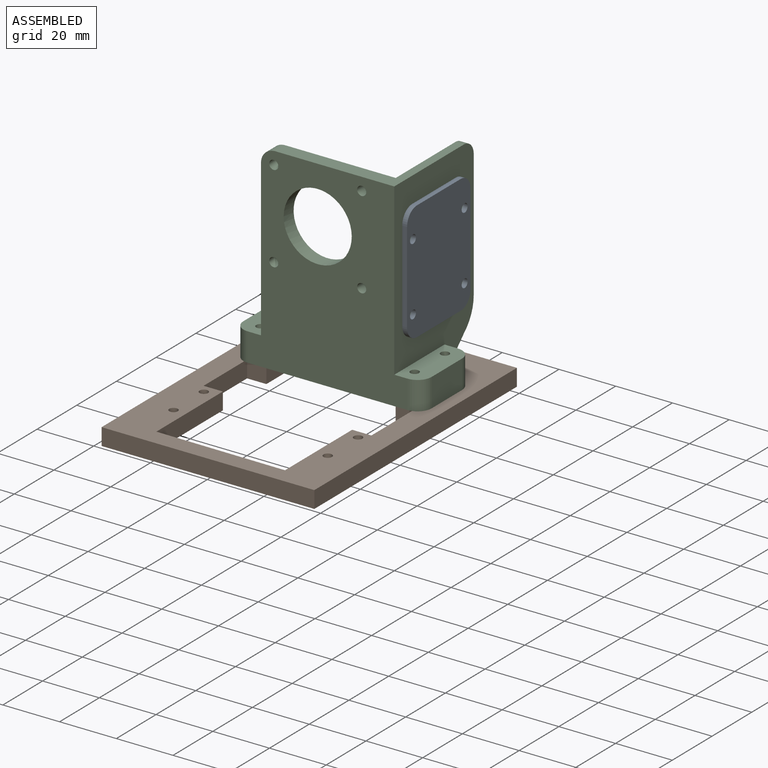
[diagram: assembled view]
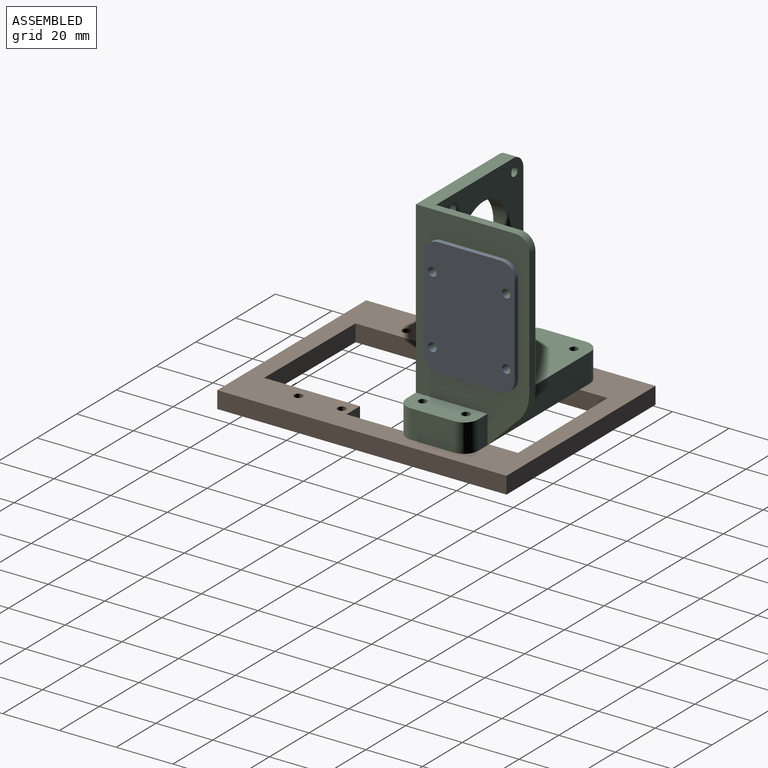
[diagram: assembled view, second angle]
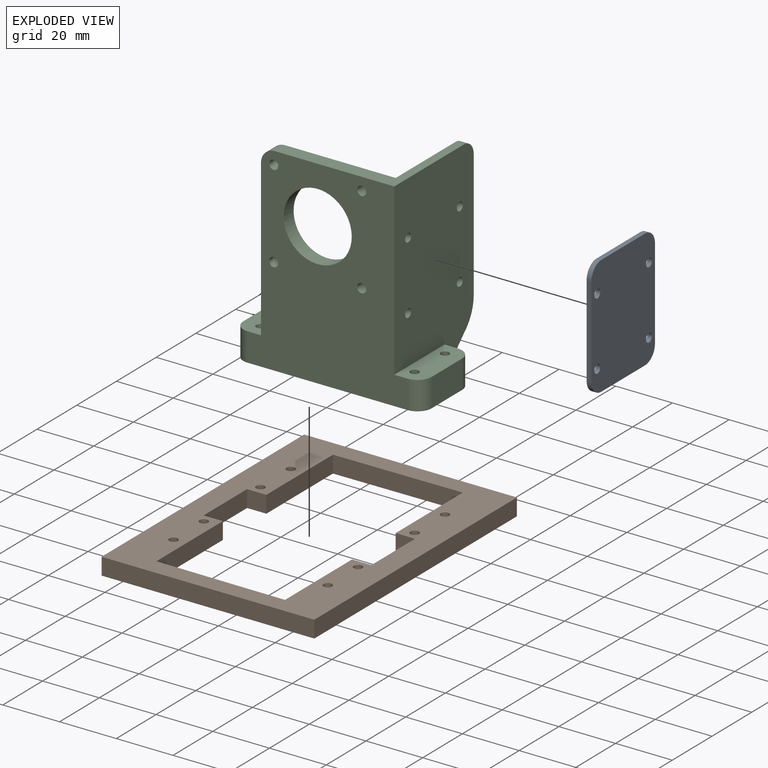
[diagram: exploded view]
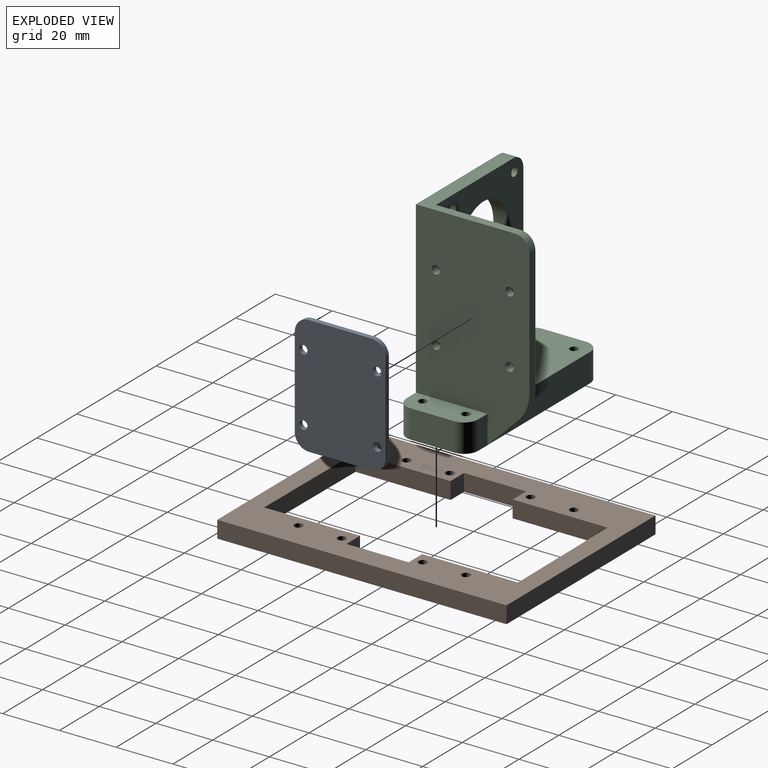
[diagram: exploded view, second angle]
ASSEMBLY  parts=3 mates=2
PART A: 14 faces, bbox 1.7x32x42 mm
  f0: cylinder r=5mm len=5mm, axis (-1,0,0), area 13.4mm2, adj f1,f11,f12,f13
  f1: plane 22x1.7mm, normal (0,0,-1), area 37.4mm2, adj f0,f2,f12,f13
  f2: cylinder r=5mm len=5mm, axis (-1,0,0), area 13.4mm2, adj f1,f3,f12,f13
  f3: plane 32x1.7mm, normal (0,1,0), area 54.4mm2, adj f2,f4,f12,f13
  f4: cylinder r=5mm len=5mm, axis (-1,0,0), area 13.4mm2, adj f3,f5,f12,f13
  f5: plane 22x1.7mm, normal (0,0,1), area 37.4mm2, adj f4,f6,f12,f13
  f6: cylinder r=5mm len=5mm, axis (-1,0,0), area 13.4mm2, adj f5,f11,f12,f13
  f7: cylinder r=1.5mm len=3mm, axis (-1,0,0), area 16mm2, adj f12,f13
  f8: cylinder r=1.5mm len=3mm, axis (-1,0,0), area 16mm2, adj f12,f13
  f9: cylinder r=1.5mm len=3mm, axis (-1,0,0), area 16mm2, adj f12,f13
  f10: cylinder r=1.5mm len=3mm, axis (-1,0,0), area 16mm2, adj f12,f13
  f11: plane 32x1.7mm, normal (0,-1,0), area 54.4mm2, adj f0,f6,f12,f13
  f12: plane 42x32mm, normal (1,0,0), area 1294.3mm2, adj f0,f1,f2,f3,f4,f5,f6,f7
  f13: plane 42x32mm, normal (-1,0,0), area 1294.3mm2, adj f0,f1,f2,f3,f4,f5,f6,f7
PART B: 26 faces, bbox 75x102x6 mm
  f0: plane 6.8x6mm, normal (0,1,0), area 40.8mm2, adj f1,f15,f24,f25
  f1: plane 33.8x6mm, normal (-1,0,0), area 202.8mm2, adj f0,f2,f24,f25
  f2: plane 45.57x6mm, normal (0.01,1,0), area 273.4mm2, adj f1,f3,f24,f25
  f3: plane 33.5x6mm, normal (1,0,0), area 201mm2, adj f2,f4,f24,f25
  f4: plane 6.8x6mm, normal (0,1,0), area 40.8mm2, adj f3,f5,f24,f25
  f5: plane 21.9x6mm, normal (1,0,0), area 131.4mm2, adj f4,f6,f24,f25
  f6: plane 6.8x6mm, normal (0,-1,0), area 40.8mm2, adj f5,f7,f24,f25
  f7: plane 33.5x6mm, normal (1,0,0), area 201mm2, adj f6,f8,f24,f25
  f8: plane 45.57x6mm, normal (0.01,-1,0), area 273.4mm2, adj f7,f9,f24,f25
  f9: plane 33.8x6mm, normal (-1,0,0), area 202.8mm2, adj f8,f10,f24,f25
  f10: plane 6.8x6mm, normal (0,-1,0), area 40.8mm2, adj f9,f15,f24,f25
  f11: plane 75x6mm, normal (0,-1,0), area 450mm2, adj f12,f16,f24,f25
  f12: plane 102x6mm, normal (1,0,0), area 612mm2, adj f11,f13,f24,f25
  f13: plane 75x6mm, normal (0,1,0), area 450mm2, adj f12,f16,f24,f25
  f14: cylinder r=1.5mm len=6mm, axis (0,0,-1), area 56.5mm2, adj f24,f25
  f15: plane 21.9x6mm, normal (-1,0,0), area 131.4mm2, adj f0,f10,f24,f25
  f16: plane 102x6mm, normal (-1,0,0), area 612mm2, adj f11,f13,f24,f25
  f17: cylinder r=1.5mm len=6mm, axis (0,0,-1), area 56.5mm2, adj f24,f25
  f18: cylinder r=1.5mm len=6mm, axis (0,0,-1), area 56.5mm2, adj f24,f25
  f19: cylinder r=1.5mm len=6mm, axis (0,0,-1), area 56.5mm2, adj f24,f25
  f20: cylinder r=1.5mm len=6mm, axis (0,0,-1), area 56.5mm2, adj f24,f25
  f21: cylinder r=1.5mm len=6mm, axis (0,0,-1), area 56.5mm2, adj f24,f25
  f22: cylinder r=1.5mm len=6mm, axis (0,0,-1), area 56.5mm2, adj f24,f25
  f23: cylinder r=1.5mm len=6mm, axis (0,0,-1), area 56.5mm2, adj f24,f25
  f24: plane 102x75mm, normal (0,0,1), area 3230.8mm2, adj f0,f1,f2,f3,f4,f5,f6,f7
  f25: plane 102x75mm, normal (0,0,-1), area 3230.8mm2, adj f0,f1,f2,f3,f4,f5,f6,f7
PART C: 35 faces, bbox 66.4x40x70 mm
  f0: plane 10x4.69mm, normal (0,1,0), area 46.9mm2, adj f1,f11,f12,f34
  f1: plane 25.25x9.69mm, normal (0,0,1), area 219.7mm2, adj f0,f3,f4,f6,f10,f12,f33,f34
  f2: plane 53.69x25.25mm, normal (0,0,1), area 1110.7mm2, adj f3,f5,f7,f8,f9,f13,f14,f21
  f3: plane 70x56.37mm, normal (0,-1,0), area 2893.8mm2, adj f1,f2,f11,f12,f14,f15,f16,f17
  f4: plane 15.25x10mm, normal (1,0,0), area 152.5mm2, adj f1,f11,f33,f34
  f5: plane 48.69x10mm, normal (0,1,0), area 486.9mm2, adj f2,f11,f21,f32
  f6: cylinder r=1.5mm len=10mm, axis (0,0,-1), area 94.2mm2, adj f1,f11
  f7: cylinder r=1.5mm len=10mm, axis (0,0,-1), area 94.2mm2, adj f2,f11
  f8: cylinder r=1.5mm len=10mm, axis (0,0,-1), area 94.2mm2, adj f2,f11
  f9: plane 15.25x10mm, normal (-1,0,0), area 152.5mm2, adj f2,f11,f31,f32
  f10: cylinder r=1.5mm len=10mm, axis (0,0,-1), area 94.2mm2, adj f1,f11
  f11: plane 66.37x25.25mm, normal (0,0,-1), area 1626.1mm2, adj f0,f3,f4,f5,f6,f7,f8,f9
  f12: plane 70x40mm, normal (1,0,0), area 2401.6mm2, adj f0,f1,f3,f15,f22,f23,f24,f25
  f13: plane 60x44mm, normal (0,1,0), area 2150.1mm2, adj f2,f14,f15,f16,f17,f18,f19,f20
  f14: plane 55x5mm, normal (-1,0,0), area 275mm2, adj f2,f3,f13,f30
  f15: plane 42x35mm, normal (0,0,1), area 300mm2, adj f3,f12,f13,f21,f29,f30
  f16: cylinder r=12mm len=24mm, axis (0,-1,0), area 377mm2, adj f3,f13
  f17: cylinder r=1.6mm len=5mm, axis (0,-1,0), area 50.3mm2, adj f3,f13
  f18: cylinder r=1.6mm len=5mm, axis (0,-1,0), area 50.3mm2, adj f3,f13
  f19: cylinder r=1.6mm len=5mm, axis (0,-1,0), area 50.3mm2, adj f3,f13
  f20: cylinder r=1.6mm len=5mm, axis (0,-1,0), area 50.3mm2, adj f3,f13
  f21: plane 70x35mm, normal (-1,0,0), area 2101.6mm2, adj f2,f5,f13,f15,f22,f23,f24,f25
  f22: plane 44.82x3mm, normal (0,1,0), area 134.5mm2, adj f12,f21,f28,f29
  f23: cylinder r=1.5mm len=3mm, axis (1,0,0), area 28.3mm2, adj f12,f21
  f24: cylinder r=1.5mm len=3mm, axis (1,0,0), area 28.3mm2, adj f12,f21
  f25: cylinder r=1.5mm len=3mm, axis (1,0,0), area 28.3mm2, adj f12,f21
  f26: cylinder r=1.5mm len=3mm, axis (1,0,0), area 28.3mm2, adj f12,f21
  f27: plane 10x10mm, normal (0,0.71,-0.71), area 42.4mm2, adj f11,f12,f21,f28
  f28: cylinder r=13.28mm len=10.18mm, axis (1,0,0), area 34.8mm2, adj f12,f21,f22,f27
  f29: cylinder r=5mm len=5mm, axis (-1,0,0), area 23.6mm2, adj f12,f15,f21,f22
  f30: cylinder r=5mm len=5mm, axis (0,1,0), area 39.3mm2, adj f3,f13,f14,f15
  f31: cylinder r=5mm len=10mm, axis (0,0,-1), area 78.5mm2, adj f2,f3,f9,f11
  f32: cylinder r=5mm len=10mm, axis (0,0,1), area 78.5mm2, adj f2,f5,f9,f11
  f33: cylinder r=5mm len=10mm, axis (0,0,1), area 78.5mm2, adj f1,f3,f4,f11
  f34: cylinder r=5mm len=10mm, axis (0,0,-1), area 78.5mm2, adj f0,f1,f4,f11
PLACE A t=(32.9,15.87,-27.9)mm
PLACE B t=(32.9,15.87,-27.9)mm
PLACE C t=(32.9,15.87,-27.9)mm
MATE fastened B.f14 <-> C.f8  axis (0,0,1) through (5.71,30.12,-21.9)mm
MATE fastened C.f23 <-> A.f7  axis (1,0,0) through (56.4,32.12,29.1)mm
